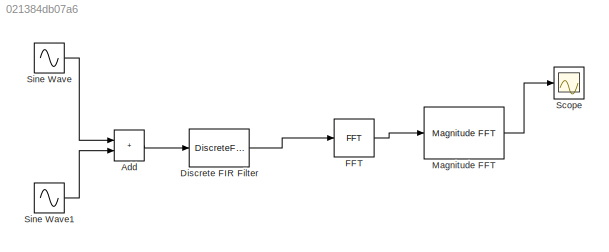
MODEL slx_021384db07a6
KIND model
CONFIG AbsTol = auto
CONFIG EnableMultiTasking = off
CONFIG FixedStep = auto
CONFIG MaxStep = auto
CONFIG MinStep = auto
CONFIG RelTol = 1e-3
CONFIG SampleTimeConstraint = Unconstrained
CONFIG SolverName = VariableStepAuto
CONFIG StartTime = 0.0
CONFIG StopTime = 10.0
BLOCK [Sum] Add
  IconShape = rectangular
BLOCK [DiscreteFir] Discrete FIR Filter
  Coefficients = b
  InputPortMap = u0
  OutputPortMap = o0
BLOCK [Reference] FFT  REF=dspxfrm3/FFT
  SourceBlock = dspxfrm3/FFT
  SourceType = FFT
BLOCK [Reference] Magnitude FFT  REF=dspspect3/Magnitude
FFT
  SourceBlock = dspspect3/Magnitude\nFFT
  SourceType = Magnitude FFT
BLOCK [Scope] Scope
  Floating = off
  NumInputPorts = 1
  ScopeSpecificationString = Simulink.scopes.TimeScopeBlockCfg('CurrentConfiguration', extmgr.ConfigurationSet(extmgr.Configuration('Core','General UI',true),extmgr.Configuration('Core','Source UI',true),extmgr.Configuration('Sources','WiredSimulink',true),extmgr.Configuration('Visuals','Time Domain',true,'SerializedDisplays',{struct('MinYLimReal','-1.27087','MaxYLimReal','1.25536','YLabelReal','','MinYLimMag','0.00000','MaxY...<+1463ch>
BLOCK [Sin] Sine Wave
  Frequency = 2*pi*50
  SampleTime = 0
BLOCK [Sin] Sine Wave1
  Amplitude = 0.5
  Frequency = 2*pi*120
  SampleTime = 0
LINE Add:1 -> Discrete FIR Filter:1
LINE Discrete FIR Filter:1 -> FFT:1
LINE FFT:1 -> Magnitude FFT:1
LINE Magnitude FFT:1 -> Scope:1
LINE Sine Wave1:1 -> Add:2
LINE Sine Wave:1 -> Add:1
